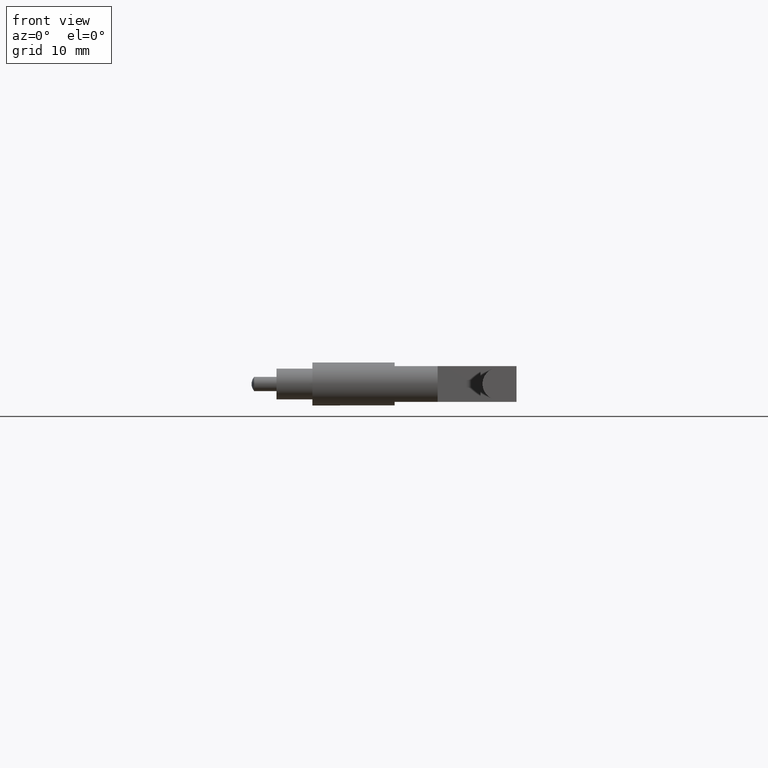
[diagram: clean part render]
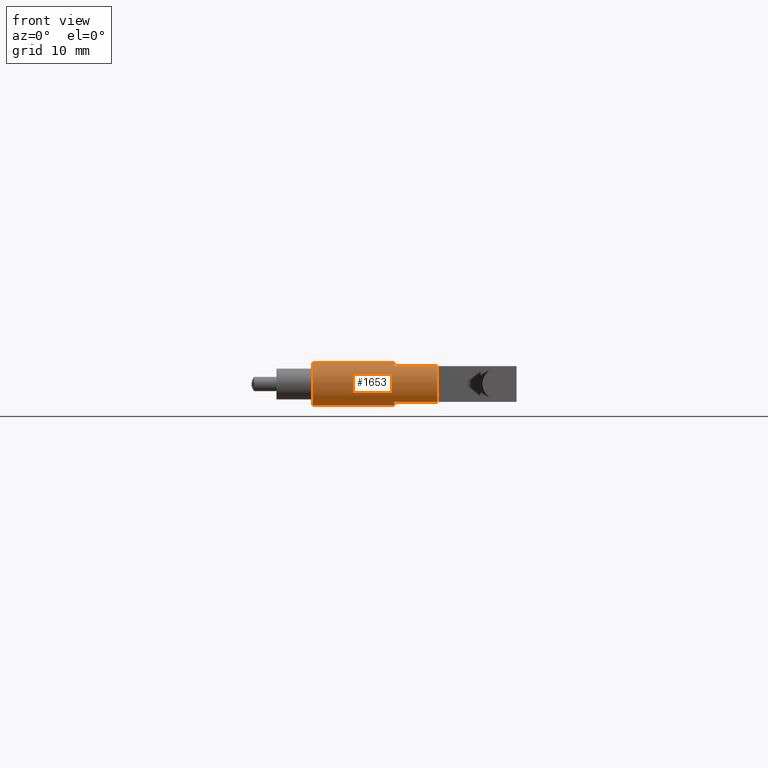
[diagram: same view with one face highlighted and labeled with its STEP entity id]
A machine part, front view. The second image highlights one B-rep face of the part: STEP entity #1653.
In plain terms, the highlighted cylindrical surface (bore or boss wall) has radius 3 mm, axis along (-1, 0, 0).
Its self-contained STEP definition (entity closure, byte-faithful):
#12 = LINE ( 'NONE', #716, #1896 ) ;
#20 = ORIENTED_EDGE ( 'NONE', *, *, #1453, .T. ) ;
#75 = EDGE_CURVE ( 'NONE', #1136, #951, #1530, .T. ) ;
#123 = EDGE_CURVE ( 'NONE', #1816, #1136, #436, .T. ) ;
#136 = EDGE_CURVE ( 'NONE', #951, #413, #412, .T. ) ;
#149 = VECTOR ( 'NONE', #1119, 39.37007874015748143 ) ;
#161 = CARTESIAN_POINT ( 'NONE',  ( 1.023622047244094446, 0.06528788957392520076, -0.09842519685039370636 ) ) ;
#182 = VERTEX_POINT ( 'NONE', #1662 ) ;
#186 = LINE ( 'NONE', #967, #1162 ) ;
#202 = ORIENTED_EDGE ( 'NONE', *, *, #1871, .T. ) ;
#203 = DIRECTION ( 'NONE',  ( -1.000000000000000000, -0.0000000000000000000, -0.0000000000000000000 ) ) ;
#207 = CARTESIAN_POINT ( 'NONE',  ( 1.023622047244094446, 0.0000000000000000000, 0.0000000000000000000 ) ) ;
#237 = EDGE_CURVE ( 'NONE', #976, #1361, #1596, .T. ) ;
#255 = AXIS2_PLACEMENT_3D ( 'NONE', #1070, #805, #937 ) ;
#265 = CARTESIAN_POINT ( 'NONE',  ( 1.023622047244094446, -0.06528788957392520076, -0.09842519685039370636 ) ) ;
#288 = CIRCLE ( 'NONE', #1057, 0.1181102362204724532 ) ;
#302 = AXIS2_PLACEMENT_3D ( 'NONE', #1087, #319, #1498 ) ;
#310 = DIRECTION ( 'NONE',  ( -1.000000000000000000, 0.0000000000000000000, 0.0000000000000000000 ) ) ;
#319 = DIRECTION ( 'NONE',  ( -1.000000000000000000, -0.0000000000000000000, -0.0000000000000000000 ) ) ;
#326 = DIRECTION ( 'NONE',  ( -1.000000000000000000, -0.0000000000000000000, -0.0000000000000000000 ) ) ;
#354 = DIRECTION ( 'NONE',  ( -1.000000000000000000, -0.0000000000000000000, -0.0000000000000000000 ) ) ;
#407 = CIRCLE ( 'NONE', #449, 0.1181102362204724532 ) ;
#412 = LINE ( 'NONE', #1086, #1417 ) ;
#413 = VERTEX_POINT ( 'NONE', #1173 ) ;
#425 = VERTEX_POINT ( 'NONE', #1720 ) ;
#436 = CIRCLE ( 'NONE', #725, 0.1181102362204724532 ) ;
#446 = FACE_OUTER_BOUND ( 'NONE', #744, .T. ) ;
#449 = AXIS2_PLACEMENT_3D ( 'NONE', #1758, #1775, #743 ) ;
#454 = ORIENTED_EDGE ( 'NONE', *, *, #136, .T. ) ;
#481 = DIRECTION ( 'NONE',  ( 0.0000000000000000000, 0.0000000000000000000, 1.000000000000000000 ) ) ;
#519 = FACE_OUTER_BOUND ( 'NONE', #898, .T. ) ;
#586 = CARTESIAN_POINT ( 'NONE',  ( 0.7874015748031496509, 0.06528788957392520076, 0.09842519685039370636 ) ) ;
#590 = CARTESIAN_POINT ( 'NONE',  ( 1.023622047244094446, -0.06528788957392520076, 0.09842519685039370636 ) ) ;
#624 = DIRECTION ( 'NONE',  ( 0.0000000000000000000, 0.0000000000000000000, 1.000000000000000000 ) ) ;
#692 = DIRECTION ( 'NONE',  ( -1.000000000000000000, 0.0000000000000000000, 0.0000000000000000000 ) ) ;
#703 = ORIENTED_EDGE ( 'NONE', *, *, #1165, .T. ) ;
#716 = CARTESIAN_POINT ( 'NONE',  ( 0.0000000000000000000, 0.06528788957392520076, 0.09842519685039370636 ) ) ;
#725 = AXIS2_PLACEMENT_3D ( 'NONE', #1091, #203, #816 ) ;
#743 = DIRECTION ( 'NONE',  ( 0.0000000000000000000, 0.0000000000000000000, 1.000000000000000000 ) ) ;
#744 = EDGE_LOOP ( 'NONE', ( #1014 ) ) ;
#755 = CARTESIAN_POINT ( 'NONE',  ( 0.0000000000000000000, 0.0000000000000000000, 0.0000000000000000000 ) ) ;
#805 = DIRECTION ( 'NONE',  ( 1.000000000000000000, 0.0000000000000000000, 0.0000000000000000000 ) ) ;
#816 = DIRECTION ( 'NONE',  ( 0.0000000000000000000, 0.0000000000000000000, 1.000000000000000000 ) ) ;
#829 = CARTESIAN_POINT ( 'NONE',  ( 1.023622047244094446, -0.1181102362204724532, 0.0000000000000000000 ) ) ;
#837 = ORIENTED_EDGE ( 'NONE', *, *, #1665, .T. ) ;
#838 = DIRECTION ( 'NONE',  ( -1.000000000000000000, 0.0000000000000000000, 0.0000000000000000000 ) ) ;
#888 = CARTESIAN_POINT ( 'NONE',  ( 0.7874015748031496509, -0.06528788957392520076, -0.09842519685039370636 ) ) ;
#889 = CIRCLE ( 'NONE', #255, 0.1181102362204724532 ) ;
#898 = EDGE_LOOP ( 'NONE', ( #1894, #454, #1131, #1270, #837, #703, #202, #1106, #20, #1090 ) ) ;
#937 = DIRECTION ( 'NONE',  ( 0.0000000000000000000, 0.0000000000000000000, -1.000000000000000000 ) ) ;
#951 = VERTEX_POINT ( 'NONE', #161 ) ;
#967 = CARTESIAN_POINT ( 'NONE',  ( 0.0000000000000000000, -0.06528788957392520076, 0.09842519685039370636 ) ) ;
#976 = VERTEX_POINT ( 'NONE', #888 ) ;
#999 = AXIS2_PLACEMENT_3D ( 'NONE', #1430, #692, #1413 ) ;
#1000 = VERTEX_POINT ( 'NONE', #586 ) ;
#1014 = ORIENTED_EDGE ( 'NONE', *, *, #1543, .F. ) ;
#1016 = DIRECTION ( 'NONE',  ( 1.000000000000000000, -0.0000000000000000000, -0.0000000000000000000 ) ) ;
#1057 = AXIS2_PLACEMENT_3D ( 'NONE', #207, #354, #624 ) ;
#1070 = CARTESIAN_POINT ( 'NONE',  ( 0.7874015748031496509, 0.0000000000000000000, 0.0000000000000000000 ) ) ;
#1086 = CARTESIAN_POINT ( 'NONE',  ( 0.0000000000000000000, 0.06528788957392520076, -0.09842519685039370636 ) ) ;
#1087 = CARTESIAN_POINT ( 'NONE',  ( 1.023622047244094446, 0.0000000000000000000, 0.0000000000000000000 ) ) ;
#1090 = ORIENTED_EDGE ( 'NONE', *, *, #123, .T. ) ;
#1091 = CARTESIAN_POINT ( 'NONE',  ( 1.023622047244094446, 0.0000000000000000000, 0.0000000000000000000 ) ) ;
#1106 = ORIENTED_EDGE ( 'NONE', *, *, #1675, .F. ) ;
#1119 = DIRECTION ( 'NONE',  ( 1.000000000000000000, -0.0000000000000000000, -0.0000000000000000000 ) ) ;
#1131 = ORIENTED_EDGE ( 'NONE', *, *, #1282, .T. ) ;
#1136 = VERTEX_POINT ( 'NONE', #1364 ) ;
#1143 = CIRCLE ( 'NONE', #302, 0.1181102362204724532 ) ;
#1157 = AXIS2_PLACEMENT_3D ( 'NONE', #755, #310, #1335 ) ;
#1162 = VECTOR ( 'NONE', #838, 39.37007874015748143 ) ;
#1165 = EDGE_CURVE ( 'NONE', #1201, #1405, #1143, .T. ) ;
#1173 = CARTESIAN_POINT ( 'NONE',  ( 0.7874015748031496509, 0.06528788957392520076, -0.09842519685039370636 ) ) ;
#1201 = VERTEX_POINT ( 'NONE', #829 ) ;
#1270 = ORIENTED_EDGE ( 'NONE', *, *, #237, .T. ) ;
#1282 = EDGE_CURVE ( 'NONE', #413, #976, #1568, .T. ) ;
#1335 = DIRECTION ( 'NONE',  ( 0.0000000000000000000, 0.0000000000000000000, 1.000000000000000000 ) ) ;
#1338 = CARTESIAN_POINT ( 'NONE',  ( 1.023622047244094446, 0.0000000000000000000, 0.0000000000000000000 ) ) ;
#1361 = VERTEX_POINT ( 'NONE', #265 ) ;
#1364 = CARTESIAN_POINT ( 'NONE',  ( 1.023622047244094446, 0.1181102362204724532, 0.0000000000000000000 ) ) ;
#1405 = VERTEX_POINT ( 'NONE', #590 ) ;
#1413 = DIRECTION ( 'NONE',  ( 0.0000000000000000000, 0.0000000000000000000, 1.000000000000000000 ) ) ;
#1417 = VECTOR ( 'NONE', #1676, 39.37007874015748143 ) ;
#1430 = CARTESIAN_POINT ( 'NONE',  ( 0.7874015748031496509, 0.0000000000000000000, 0.0000000000000000000 ) ) ;
#1453 = EDGE_CURVE ( 'NONE', #1000, #1816, #12, .T. ) ;
#1498 = DIRECTION ( 'NONE',  ( 0.0000000000000000000, 0.0000000000000000000, 1.000000000000000000 ) ) ;
#1502 = CYLINDRICAL_SURFACE ( 'NONE', #1157, 0.1181102362204724532 ) ;
#1530 = CIRCLE ( 'NONE', #1837, 0.1181102362204724532 ) ;
#1543 = EDGE_CURVE ( 'NONE', #425, #425, #407, .T. ) ;
#1568 = CIRCLE ( 'NONE', #999, 0.1181102362204724532 ) ;
#1596 = LINE ( 'NONE', #1691, #149 ) ;
#1653 = ADVANCED_FACE ( 'NONE', ( #446, #519 ), #1502, .T. ) ;
#1662 = CARTESIAN_POINT ( 'NONE',  ( 0.7874015748031496509, -0.06528788957392520076, 0.09842519685039370636 ) ) ;
#1665 = EDGE_CURVE ( 'NONE', #1361, #1201, #288, .T. ) ;
#1675 = EDGE_CURVE ( 'NONE', #1000, #182, #889, .T. ) ;
#1676 = DIRECTION ( 'NONE',  ( -1.000000000000000000, 0.0000000000000000000, 0.0000000000000000000 ) ) ;
#1691 = CARTESIAN_POINT ( 'NONE',  ( 0.0000000000000000000, -0.06528788957392520076, -0.09842519685039370636 ) ) ;
#1698 = CARTESIAN_POINT ( 'NONE',  ( 1.023622047244094446, 0.06528788957392520076, 0.09842519685039370636 ) ) ;
#1720 = CARTESIAN_POINT ( 'NONE',  ( 0.3346456692913385988, 0.0000000000000000000, 0.1181102362204724532 ) ) ;
#1758 = CARTESIAN_POINT ( 'NONE',  ( 0.3346456692913385988, 0.0000000000000000000, 0.0000000000000000000 ) ) ;
#1775 = DIRECTION ( 'NONE',  ( -1.000000000000000000, 0.0000000000000000000, 0.0000000000000000000 ) ) ;
#1816 = VERTEX_POINT ( 'NONE', #1698 ) ;
#1837 = AXIS2_PLACEMENT_3D ( 'NONE', #1338, #326, #481 ) ;
#1871 = EDGE_CURVE ( 'NONE', #1405, #182, #186, .T. ) ;
#1894 = ORIENTED_EDGE ( 'NONE', *, *, #75, .T. ) ;
#1896 = VECTOR ( 'NONE', #1016, 39.37007874015748143 ) ;